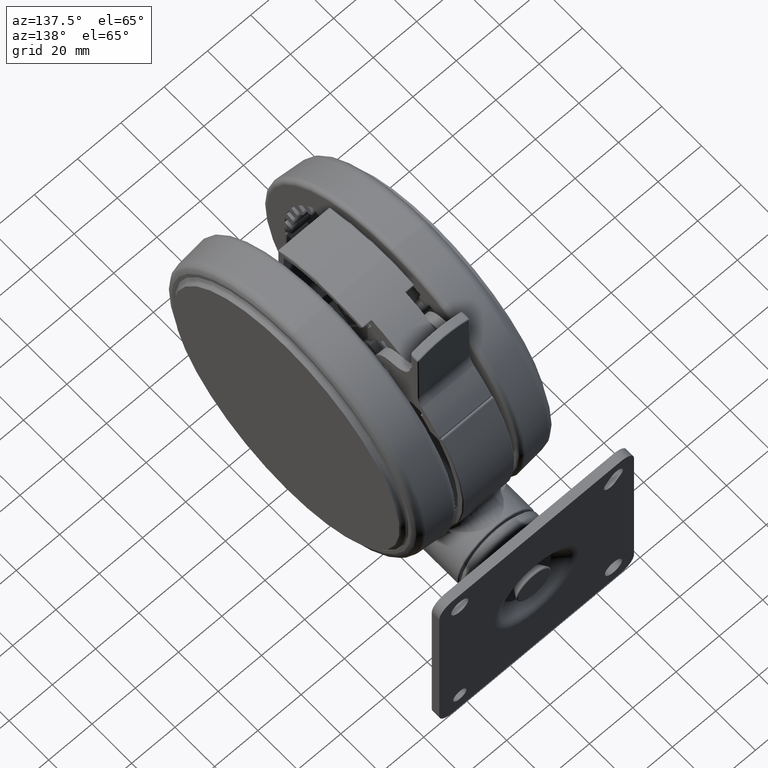
[diagram: clean part render]
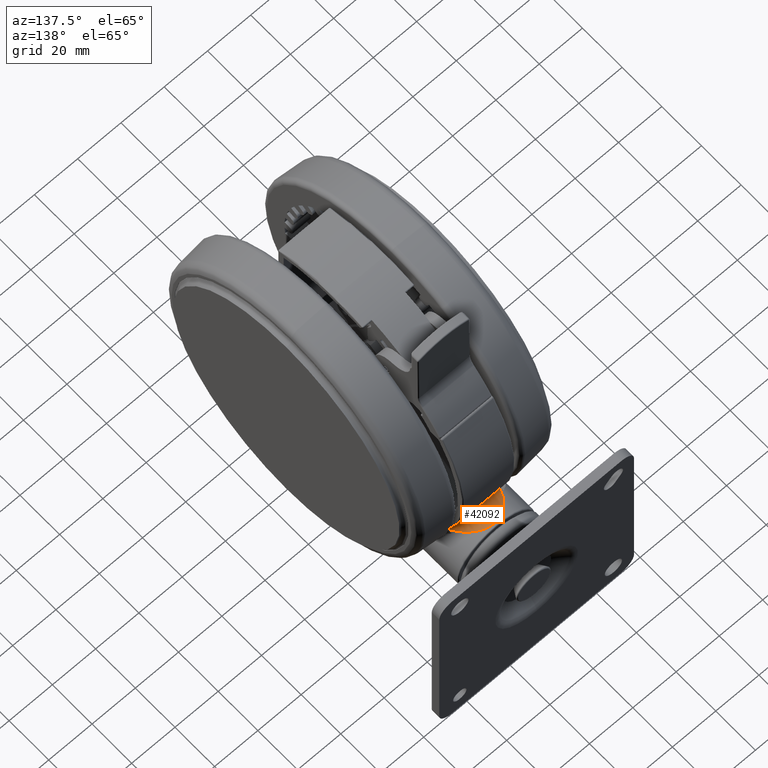
[diagram: same view with one face highlighted and labeled with its STEP entity id]
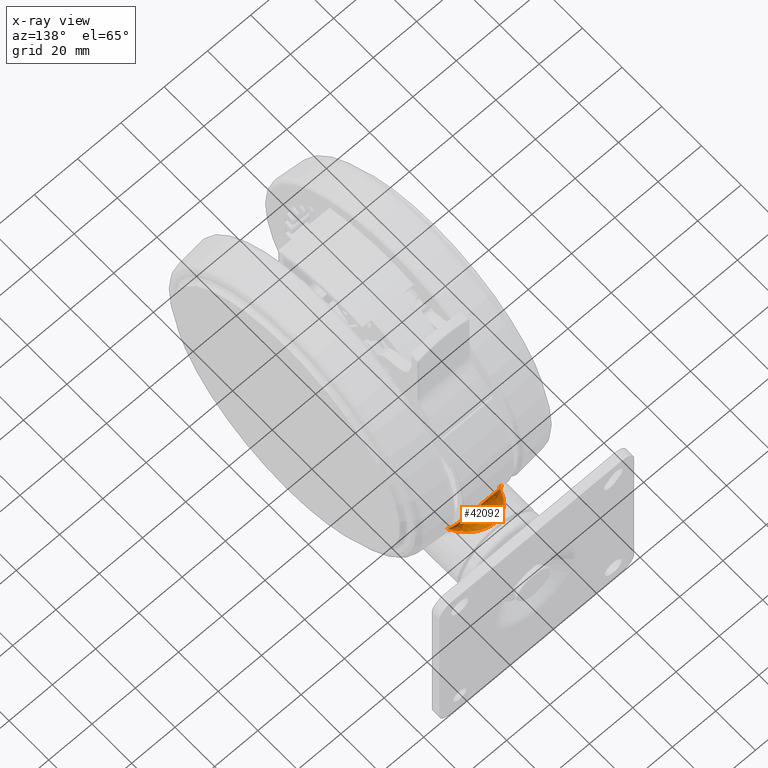
[diagram: x-ray of the same camera — body ghosted, the highlighted face saturated]
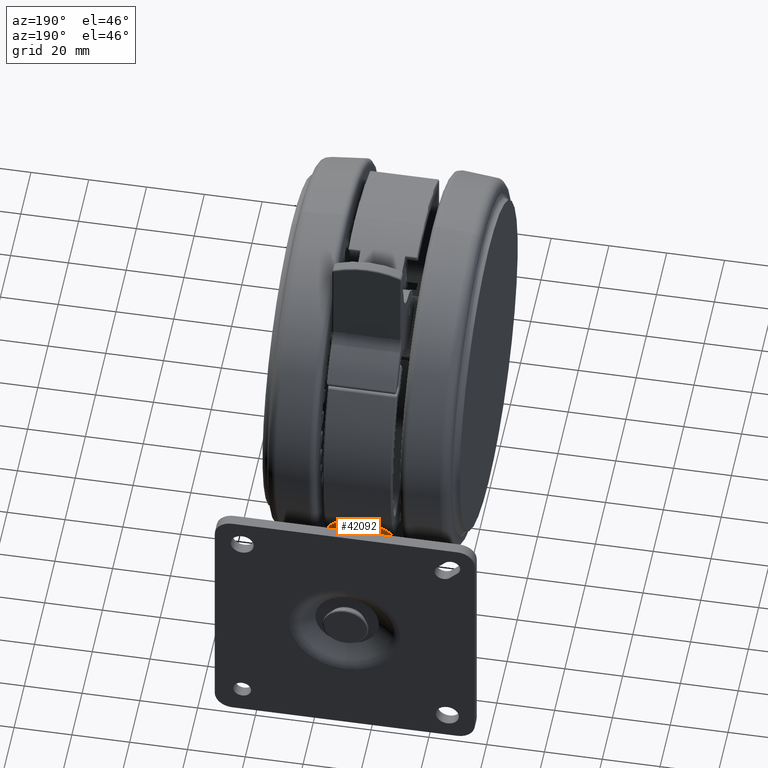
[diagram: same view with one face highlighted and labeled with its STEP entity id]
A machine part, auxiliary view. The second image highlights one B-rep face of the part: STEP entity #42092.
The next image is the same camera in x-ray: the body ghosted, the highlighted face saturated — about 0% of this face is hidden behind the body in this view.
A second angle (auxiliary view) of the same face is appended — the face is thin or edge-on in the first view.
In plain terms, the highlighted face is a freeform B-spline surface patch.
Its self-contained STEP definition (entity closure, byte-faithful):
#54 = CARTESIAN_POINT ( 'NONE',  ( 28.04856699668369700, 58.64207464974430200, -22.54200062864112700 ) ) ;
#91 = CARTESIAN_POINT ( 'NONE',  ( 21.67015956479912500, 61.28144073425520600, -41.31869377111444700 ) ) ;
#163 = CARTESIAN_POINT ( 'NONE',  ( 27.92590306755449700, 58.69533635111779500, -22.59998678528584600 ) ) ;
#333 = CARTESIAN_POINT ( 'NONE',  ( 19.32467560108554800, 62.06123351660770000, -32.35680942344248500 ) ) ;
#362 = CARTESIAN_POINT ( 'NONE',  ( 25.35360681897378400, 59.85148194636899900, -44.51417581782972400 ) ) ;
#433 = CARTESIAN_POINT ( 'NONE',  ( 29.27838663486402700, 58.06246726459874500, -22.48858511848055700 ) ) ;
#611 = CARTESIAN_POINT ( 'NONE',  ( 24.54658467532855000, 60.19142751347139600, -44.04975286024517800 ) ) ;
#719 = CARTESIAN_POINT ( 'NONE',  ( 31.52306849014732000, 56.89613251212048100, -22.14533324549611100 ) ) ;
#887 = CARTESIAN_POINT ( 'NONE',  ( 29.35598624239206700, 58.06972531539020800, -25.13851056328339000 ) ) ;
#1165 = CARTESIAN_POINT ( 'NONE',  ( 27.00023611895765200, 59.68437581392590400, -33.53456606252097300 ) ) ;
#1174 = B_SPLINE_CURVE_WITH_KNOTS ( 'NONE', 3,
 ( #68910, #5065, #37131, #81670, #43554, #5350, #49997, #11744, #56344, #18167, #62766, #24585, #69202, #30946, #75528, #37408, #81954, #43830, #5620, #50265, #12020, #56629, #18439, #63037, #24864, #69482, #31244, #75792, #37698, #82217 ),
 .UNSPECIFIED., .F., .F.,
 ( 4, 2, 2, 2, 2, 2, 2, 2, 2, 2, 2, 2, 2, 2, 4 ),
 ( -6.000000000594909100E-008, 0.0002769874312782856800, 0.0003462492890978491500, 0.0003808802180076152700, 0.0004155111469173813400, 0.0004241688791448154800, 0.0004328266113722496300, 0.0004501420758271282100, 0.0004847730047368786700, 0.0005540348625563733500, 0.0008310822938343904400, 0.001108129725112407600, 0.002216319450224488300, 0.003324509175336568800, 0.004432698900448650200 ),
 .UNSPECIFIED. ) ;
#1455 = CARTESIAN_POINT ( 'NONE',  ( 29.07747657931470500, 58.23523519274650100, -42.56144434127779900 ) ) ;
#1719 = CARTESIAN_POINT ( 'NONE',  ( 29.55780505888880000, 62.26540552550330400, -24.83595255570321900 ) ) ;
#2008 = CARTESIAN_POINT ( 'NONE',  ( 26.99967659762764800, 67.82343334390419900, -34.73940035556560700 ) ) ;
#2297 = CARTESIAN_POINT ( 'NONE',  ( 29.81333750569545100, 61.63642363757259800, -43.77433289821250600 ) ) ;
#3451 = CARTESIAN_POINT ( 'NONE',  ( 30.58251653568941500, 59.69282717029901200, -44.87856006597162000 ) ) ;
#3561 = ORIENTED_EDGE ( 'NONE', *, *, #6501, .F. ) ;
#3723 = CARTESIAN_POINT ( 'NONE',  ( 28.69495899091717600, 64.19678313742727500, -41.73013351485461400 ) ) ;
#3993 = VERTEX_POINT ( 'NONE', #75811 ) ;
#4594 = CARTESIAN_POINT ( 'NONE',  ( 27.13532945001938800, 67.53509397162231700, -31.89133214783808900 ) ) ;
#4882 = CARTESIAN_POINT ( 'NONE',  ( 29.31972042937714200, 62.81321208133081100, -25.25708756672131400 ) ) ;
#5065 = CARTESIAN_POINT ( 'NONE',  ( 31.45371904588189300, 57.19405394919948500, -45.95325033781666900 ) ) ;
#5155 = CARTESIAN_POINT ( 'NONE',  ( 31.19628043411741900, 58.00278629100984800, -22.54204867426955900 ) ) ;
#5223 =( BOUNDED_SURFACE ( )  B_SPLINE_SURFACE ( 2, 3, ( 
 ( #31817, #25422, #37998, #38271, #54, #44687, #6484, #51111, #12870, #57482, #19296, #63886, #25689, #70337, #32080, #76655, #38534, #333, #44962, #6751, #51391, #13152, #57756, #19559, #64153, #25951, #70590, #32345, #76924, #38812, #611, #45244, #7017, #51650, #13423, #58019, #19827, #64429 ),
 ( #26229, #70857, #32617, #77209, #39083, #887, #45514, #7291, #51921, #13699, #58288, #20097, #64709, #26500, #71113, #32900, #77472, #39360, #1165, #45792, #7569, #52189, #13964, #58559, #20374, #64972, #26773, #71379, #33174, #77750, #39632, #1455, #46068, #7846, #52467, #14240, #58848, #20650 ),
 ( #65252, #27033, #71653, #33451, #78028, #39926, #1719, #46354, #8118, #52748, #14511, #59134, #20917, #65527, #27298, #71926, #33740, #78302, #40202, #2008, #46622, #8395, #53026, #14803, #59418, #21210, #65805, #27574, #72203, #34013, #78589, #40487, #2297, #46907, #8664, #53292, #15072, #59708 ) ),
 .UNSPECIFIED., .F., .F., .F. ) 
 B_SPLINE_SURFACE_WITH_KNOTS ( ( 3, 3 ),
 ( 4, 2, 2, 2, 2, 2, 2, 2, 2, 2, 2, 2, 2, 2, 2, 2, 2, 2, 4 ),
 ( 0.0000000000000000000, 1.000000000000000000 ),
 ( 5.204170427930419700E-018, 0.001667139977258240000, 0.003334279954516470100, 0.005001419931774699900, 0.006668559909032929800, 0.008335699886291170900, 0.01000283986354940000, 0.01083640985217850000, 0.01166997984080762000, 0.01333711981806586100, 0.01500425979532410100, 0.01667139977258235200, 0.01750496976121145000, 0.01833853974984054800, 0.02000567972709880000, 0.02167281970435699900, 0.02333995968161525100, 0.02500709965887349900, 0.02667423963613169800 ),
 .UNSPECIFIED. ) 
 GEOMETRIC_REPRESENTATION_ITEM ( )  RATIONAL_B_SPLINE_SURFACE ( (
 ( 1.000000000000000000, 1.000000000000000000, 1.000000000000000000, 1.000000000000000000, 1.000000000000000000, 1.000000000000000000, 1.000000000000000000, 1.000000000000000000, 1.000000000000000000, 1.000000000000000000, 1.000000000000000000, 1.000000000000000000, 1.000000000000000000, 1.000000000000000000, 1.000000000000000000, 1.000000000000000000, 1.000000000000000000, 1.000000000000000000, 1.000000000000000000, 1.000000000000000000, 1.000000000000000000, 1.000000000000000000, 1.000000000000000000, 1.000000000000000000, 1.000000000000000000, 1.000000000000000000, 1.000000000000000000, 1.000000000000000000, 1.000000000000000000, 1.000000000000000000, 1.000000000000000000, 1.000000000000000000, 1.000000000000000000, 1.000000000000000000, 1.000000000000000000, 1.000000000000000000, 1.000000000000000000, 1.000000000000000000),
 ( 0.5647258037007070200, 0.5655213132370029400, 0.5663961334035440000, 0.5683943253827109500, 0.5695198488730579500, 0.5720558501717690800, 0.5734669485592089900, 0.5765124468072179200, 0.5781475654898049500, 0.5814891669686500500, 0.5831882247234410100, 0.5863946730206040000, 0.5879006976314270500, 0.5898266888057840400, 0.5904132971751010500, 0.5914474913352560900, 0.5918951216355329300, 0.5929913961683669400, 0.5933905047672920500, 0.5933911489361780600, 0.5929928103426670400, 0.5915332551926340000, 0.5904725584566089500, 0.5885440730934089500, 0.5878456986427800200, 0.5863691916050219900, 0.5855910221176889900, 0.5831839304223470600, 0.5814835273327909600, 0.5781309389228360700, 0.5764800648591369400, 0.5734174611103860500, 0.5720131733970780200, 0.5694909597531649900, 0.5683740286654650500, 0.5663900183348520300, 0.5655207354603170000, 0.5647258037007070200),
 ( 1.000000000000000000, 1.000000000000000000, 1.000000000000000000, 1.000000000000000000, 1.000000000000000000, 1.000000000000000000, 1.000000000000000000, 1.000000000000000000, 1.000000000000000000, 1.000000000000000000, 1.000000000000000000, 1.000000000000000000, 1.000000000000000000, 1.000000000000000000, 1.000000000000000000, 1.000000000000000000, 1.000000000000000000, 1.000000000000000000, 1.000000000000000000, 1.000000000000000000, 1.000000000000000000, 1.000000000000000000, 1.000000000000000000, 1.000000000000000000, 1.000000000000000000, 1.000000000000000000, 1.000000000000000000, 1.000000000000000000, 1.000000000000000000, 1.000000000000000000, 1.000000000000000000, 1.000000000000000000, 1.000000000000000000, 1.000000000000000000, 1.000000000000000000, 1.000000000000000000, 1.000000000000000000, 1.000000000000000000) ) ) 
 REPRESENTATION_ITEM ( '' )  SURFACE ( )  );
#5350 = CARTESIAN_POINT ( 'NONE',  ( 31.52044421260573200, 56.95089837210672800, -46.03606789044940200 ) ) ;
#5397 = CARTESIAN_POINT ( 'NONE',  ( 27.92590306755449700, 58.69533635111779500, -22.59998678528584600 ) ) ;
#5620 = CARTESIAN_POINT ( 'NONE',  ( 31.44581940852823700, 56.95140354814091000, -46.02358536667519200 ) ) ;
#5680 = CARTESIAN_POINT ( 'NONE',  ( 24.13795755566093200, 60.35253772253094000, -24.44338225758372500 ) ) ;
#5947 = CARTESIAN_POINT ( 'NONE',  ( 20.37157209290337400, 61.72523377728598600, -29.00752762653992900 ) ) ;
#6231 = CARTESIAN_POINT ( 'NONE',  ( 19.54512131529279600, 61.99184361767516500, -36.80211477293095600 ) ) ;
#6484 = CARTESIAN_POINT ( 'NONE',  ( 25.92156188280764800, 59.61221899404710500, -23.33790333951210600 ) ) ;
#6501 = EDGE_CURVE ( 'NONE', #82668, #3993, #14462, .T. ) ;
#6511 = CARTESIAN_POINT ( 'NONE',  ( 22.27253549177076800, 61.06650419923458600, -42.07451242591226800 ) ) ;
#6751 = CARTESIAN_POINT ( 'NONE',  ( 19.22495734915050000, 62.09187559654269300, -34.95253380560219400 ) ) ;
#6789 = CARTESIAN_POINT ( 'NONE',  ( 26.30316968427618500, 59.44255489925022600, -45.00662855525664000 ) ) ;
#6853 = CARTESIAN_POINT ( 'NONE',  ( 30.61979484622550300, 57.41276550464460400, -22.34576774793130100 ) ) ;
#7017 = CARTESIAN_POINT ( 'NONE',  ( 26.61330569935665100, 59.30726747500840200, -45.15510334813888700 ) ) ;
#7127 = CARTESIAN_POINT ( 'NONE',  ( 31.53057118985090700, 56.89248505885615300, -22.14255972799712400 ) ) ;
#7291 = CARTESIAN_POINT ( 'NONE',  ( 28.60301970038610600, 58.53025780087431000, -26.59560844218670200 ) ) ;
#7569 = CARTESIAN_POINT ( 'NONE',  ( 27.02480509660773200, 59.66330241640814300, -35.20670666757688800 ) ) ;
#7846 = CARTESIAN_POINT ( 'NONE',  ( 29.92510175715565500, 57.73865477359170500, -43.97768108397927700 ) ) ;
#8118 = CARTESIAN_POINT ( 'NONE',  ( 28.78217675208064800, 64.02111628831620700, -26.26961754746017500 ) ) ;
#8395 = CARTESIAN_POINT ( 'NONE',  ( 27.17226583903770300, 67.44888844335730500, -36.66640549148966200 ) ) ;
#8664 = CARTESIAN_POINT ( 'NONE',  ( 30.61067069014275100, 59.62766749688760400, -44.92192518474962500 ) ) ;
#9851 = CARTESIAN_POINT ( 'NONE',  ( 30.27179689030181100, 60.49523927873468000, -44.44850423538401400 ) ) ;
#10126 = CARTESIAN_POINT ( 'NONE',  ( 28.24001786564871000, 65.19293938351768200, -40.69061770637229400 ) ) ;
#11026 = CARTESIAN_POINT ( 'NONE',  ( 27.24451530478051400, 67.30619891527301500, -31.11424504980669400 ) ) ;
#11289 = CARTESIAN_POINT ( 'NONE',  ( 29.70007213175555400, 61.92219475337594000, -24.61455989430682900 ) ) ;
#11744 = CARTESIAN_POINT ( 'NONE',  ( 31.52945603639048500, 56.91967537076817500, -46.04806017941064100 ) ) ;
#11806 = CARTESIAN_POINT ( 'NONE',  ( 27.62642517994137100, 58.83713431076597500, -22.68826808428833200 ) ) ;
#12020 = CARTESIAN_POINT ( 'NONE',  ( 31.27420864871651700, 57.05970629056270100, -45.97265322691485800 ) ) ;
#12080 = CARTESIAN_POINT ( 'NONE',  ( 23.40862095568921600, 60.63911217040720900, -25.02255636260865000 ) ) ;
#12359 = CARTESIAN_POINT ( 'NONE',  ( 19.90790737072405400, 61.87663068302234100, -30.09609914001382700 ) ) ;
#12630 = CARTESIAN_POINT ( 'NONE',  ( 19.68975077168373400, 61.94613803237425000, -37.37453438217104900 ) ) ;
#12870 = CARTESIAN_POINT ( 'NONE',  ( 23.90633399598365100, 60.44758034512310000, -24.58926750334611800 ) ) ;
#12901 = CARTESIAN_POINT ( 'NONE',  ( 23.31383103802730600, 60.67521521096313100, -43.07854949590887400 ) ) ;
#13152 = CARTESIAN_POINT ( 'NONE',  ( 19.69937146963100000, 61.94331010659080100, -37.49325383016314800 ) ) ;
#13187 = CARTESIAN_POINT ( 'NONE',  ( 27.21710659369537700, 59.02741044994478900, -45.36349939107010000 ) ) ;
#13249 = CARTESIAN_POINT ( 'NONE',  ( 31.11031044188108300, 57.15236139024619900, -22.26269152473027900 ) ) ;
#13423 = CARTESIAN_POINT ( 'NONE',  ( 28.76347434287255200, 58.29497095319050000, -45.82328586648098700 ) ) ;
#13525 = CARTESIAN_POINT ( 'NONE',  ( 31.53460133128405800, 56.90764404841674200, -22.14683346306231100 ) ) ;
#13699 = CARTESIAN_POINT ( 'NONE',  ( 27.99178168792100900, 58.93483555877440200, -28.12039462866916800 ) ) ;
#13964 = CARTESIAN_POINT ( 'NONE',  ( 27.19946060763662400, 59.52083255100706100, -36.86387200835051900 ) ) ;
#14240 = CARTESIAN_POINT ( 'NONE',  ( 30.88878454401773900, 57.19671797475412200, -45.29268016542361200 ) ) ;
#14462 = B_SPLINE_CURVE_WITH_KNOTS ( 'NONE', 3,
 ( #66727, #73341, #41679, #3451, #48088, #9851, #54446, #16258, #60868, #22659, #67283, #29020, #73621, #35481, #80048, #41947, #3723, #48361, #10126, #54726, #16523, #61135, #22933, #67547, #29305, #73894, #35748, #80301, #42219 ),
 .UNSPECIFIED., .F., .F.,
 ( 4, 2, 2, 2, 2, 1, 2, 2, 2, 2, 2, 2, 2, 2, 4 ),
 ( 0.01307860757773913900, 0.07390641945431723800, 0.1043203253926063700, 0.1195272783617509200, 0.1271307548463232500, 0.1347342313308955700, 0.1651481372691866200, 0.1955620432074776600, 0.2259759491457687100, 0.2563898550840597600, 0.3172176669606410800, 0.3476315728989313700, 0.3628385258680759700, 0.3780454788372206200, 0.4997011025903751500 ),
 .UNSPECIFIED. ) ;
#14511 = CARTESIAN_POINT ( 'NONE',  ( 28.09902508243279900, 65.50315243540769900, -27.87709333704909700 ) ) ;
#14803 = CARTESIAN_POINT ( 'NONE',  ( 27.47822675875420000, 66.80430924108270600, -38.23387646173016900 ) ) ;
#15072 = CARTESIAN_POINT ( 'NONE',  ( 31.35835011565145400, 57.52051041470670600, -45.84817176667233000 ) ) ;
#16258 = CARTESIAN_POINT ( 'NONE',  ( 30.11619238796525600, 60.88573860173628600, -44.22300870400290100 ) ) ;
#16523 = CARTESIAN_POINT ( 'NONE',  ( 27.76312691928668000, 66.20652477769560600, -39.29405858378920900 ) ) ;
#17423 = CARTESIAN_POINT ( 'NONE',  ( 27.42779434949851900, 66.92248144829613900, -30.19591483057911700 ) ) ;
#17696 = CARTESIAN_POINT ( 'NONE',  ( 29.99329104215049900, 61.20788244075375700, -24.16006867614644800 ) ) ;
#18167 = CARTESIAN_POINT ( 'NONE',  ( 31.53404641992640800, 56.89578551045166700, -46.05704411765148600 ) ) ;
#18234 = CARTESIAN_POINT ( 'NONE',  ( 27.39617166329022500, 58.94446628159057900, -22.76371515054742600 ) ) ;
#18344 = VERTEX_POINT ( 'NONE', #55660 ) ;
#18439 = CARTESIAN_POINT ( 'NONE',  ( 31.03431647934001700, 57.19330640967580600, -45.92317138293000100 ) ) ;
#18503 = CARTESIAN_POINT ( 'NONE',  ( 22.25067191259084300, 61.07446460647479100, -26.13959871664137000 ) ) ;
#18742 = CARTESIAN_POINT ( 'NONE',  ( 31.43219784115480000, 57.28045721444460300, -45.92856248409525200 ) ) ;
#18786 = CARTESIAN_POINT ( 'NONE',  ( 19.53446099107078700, 61.99526671427586400, -31.40211027222164500 ) ) ;
#19055 = CARTESIAN_POINT ( 'NONE',  ( 20.17088575764760300, 61.79124011712932000, -38.72578671634456500 ) ) ;
#19133 = CARTESIAN_POINT ( 'NONE',  ( 28.60024387827377600, 58.37445868326679500, -22.54542809405540600 ) ) ;
#19296 = CARTESIAN_POINT ( 'NONE',  ( 22.13230254501455000, 61.11824206530830100, -26.25733972223187600 ) ) ;
#19328 = CARTESIAN_POINT ( 'NONE',  ( 23.67213790501916600, 60.53632407365591200, -43.37910290245623900 ) ) ;
#19559 = CARTESIAN_POINT ( 'NONE',  ( 20.51447643478405400, 61.67813037906010000, -39.47599626259969300 ) ) ;
#19589 = CARTESIAN_POINT ( 'NONE',  ( 27.42267506145585200, 58.93218258227798100, -45.43470148881331000 ) ) ;
#19660 = CARTESIAN_POINT ( 'NONE',  ( 31.34985742047772600, 57.01552274683228900, -22.20864808847526800 ) ) ;
#19827 = CARTESIAN_POINT ( 'NONE',  ( 30.89669569522654800, 57.19276047151920000, -46.09815369055281300 ) ) ;
#19921 = CARTESIAN_POINT ( 'NONE',  ( 31.52401008762953400, 56.93889926856555000, -22.15932818830466600 ) ) ;
#20097 = CARTESIAN_POINT ( 'NONE',  ( 27.52817486493948700, 59.26864450968823700, -29.68470853590854500 ) ) ;
#20374 = CARTESIAN_POINT ( 'NONE',  ( 27.40544459973334300, 59.36131503699255800, -37.95644483310758900 ) ) ;
#20650 = CARTESIAN_POINT ( 'NONE',  ( 31.58359213500123300, 56.81088546968690200, -46.10000000000005800 ) ) ;
#20917 = CARTESIAN_POINT ( 'NONE',  ( 27.55333290124155000, 66.65922100380029700, -29.62645166784309200 ) ) ;
#21210 = CARTESIAN_POINT ( 'NONE',  ( 27.71888112723694800, 66.30018600261310300, -39.14586395928406400 ) ) ;
#22213 = EDGE_CURVE ( 'NONE', #3993, #18344, #68015, .T. ) ;
#22659 = CARTESIAN_POINT ( 'NONE',  ( 30.02072685747827000, 61.12200835616035700, -44.08121895106248900 ) ) ;
#22933 = CARTESIAN_POINT ( 'NONE',  ( 27.56352081567373700, 66.62568679229104900, -38.57121978421365300 ) ) ;
#23556 = CARTESIAN_POINT ( 'NONE',  ( 27.00000000232621400, 67.82329571296227800, -34.09999999964988100 ) ) ;
#23833 = CARTESIAN_POINT ( 'NONE',  ( 27.53010713784997800, 66.70778380839733800, -29.76120331008695200 ) ) ;
#24107 = CARTESIAN_POINT ( 'NONE',  ( 30.07544309393808400, 61.00385755500816700, -24.03727319381285500 ) ) ;
#24585 = CARTESIAN_POINT ( 'NONE',  ( 31.52702510317321900, 56.89361499310098200, -46.05630478327834300 ) ) ;
#24648 = CARTESIAN_POINT ( 'NONE',  ( 27.34814487594782800, 58.96676503255361000, -22.77986088566700600 ) ) ;
#24864 = CARTESIAN_POINT ( 'NONE',  ( 30.29631412792090800, 57.57090631435701800, -45.81754956179359800 ) ) ;
#24923 = CARTESIAN_POINT ( 'NONE',  ( 21.64952585980088200, 61.28873263384547000, -26.89637461909766400 ) ) ;
#25196 = CARTESIAN_POINT ( 'NONE',  ( 19.28304060778433600, 62.07398556647676500, -32.75484630788786700 ) ) ;
#25422 = CARTESIAN_POINT ( 'NONE',  ( 30.89677763924330000, 57.19271491534839700, -22.10175125834292600 ) ) ;
#25448 = CARTESIAN_POINT ( 'NONE',  ( 20.60295828151467000, 61.64858069595445800, -39.64227792800731000 ) ) ;
#25689 = CARTESIAN_POINT ( 'NONE',  ( 20.70238994750485200, 61.61617552377000400, -28.29856950290595600 ) ) ;
#25722 = CARTESIAN_POINT ( 'NONE',  ( 24.42173400849698300, 60.23835657775620700, -43.94026350348315900 ) ) ;
#25951 = CARTESIAN_POINT ( 'NONE',  ( 21.14585279646474800, 61.46466505758910200, -40.58104261071260800 ) ) ;
#25986 = CARTESIAN_POINT ( 'NONE',  ( 27.82032428552507900, 58.74565176112127300, -45.56163820931893600 ) ) ;
#26058 = CARTESIAN_POINT ( 'NONE',  ( 31.46218175859501200, 56.94005333528130600, -22.17043312605466500 ) ) ;
#26229 = CARTESIAN_POINT ( 'NONE',  ( 31.58359213500123300, 56.81088546968690200, -22.10000000000007600 ) ) ;
#26326 = CARTESIAN_POINT ( 'NONE',  ( 31.51172991225010400, 56.98082249274452900, -22.17511674096863700 ) ) ;
#26500 = CARTESIAN_POINT ( 'NONE',  ( 27.25461895886604000, 59.47923668865434600, -31.03156326798979200 ) ) ;
#26773 = CARTESIAN_POINT ( 'NONE',  ( 27.59711526970946600, 59.21759488926223000, -38.76066206714875800 ) ) ;
#27033 = CARTESIAN_POINT ( 'NONE',  ( 31.35843477451469900, 57.52046430611630300, -22.35173358184122700 ) ) ;
#27298 = CARTESIAN_POINT ( 'NONE',  ( 27.29019217615704900, 67.21075627637419800, -30.86486151949601400 ) ) ;
#27574 = CARTESIAN_POINT ( 'NONE',  ( 28.09400730688095000, 65.50544313662851400, -40.30955521367830800 ) ) ;
#28122 = B_SPLINE_CURVE_WITH_KNOTS ( 'NONE', 3,
 ( #163, #19133, #433, #45080, #6853, #51491, #13249, #57843, #19660, #64250, #26058, #70689, #32441, #77027, #38908, #719, #45337, #7127, #51757, #13525, #58125, #19921, #64534, #26326, #70966, #32724, #77309, #39189 ),
 .UNSPECIFIED., .F., .F.,
 ( 4, 2, 2, 2, 2, 2, 2, 2, 2, 2, 2, 2, 2, 4 ),
 ( -5.999999999803910000E-008, 0.002245522492350282700, 0.003368313738525427400, 0.003649011550069221700, 0.003929709361613014700, 0.003999883814498965800, 0.004034971040941948700, 0.004052514654163444000, 0.004061286460774183500, 0.004070058267384922000, 0.004105145493827904100, 0.004140232720270886100, 0.004210407173156854500, 0.004491104984700714300 ),
 .UNSPECIFIED. ) ;
#29020 = CARTESIAN_POINT ( 'NONE',  ( 29.69672383438819500, 61.90609721813013500, -43.58013941253064900 ) ) ;
#29157 = EDGE_CURVE ( 'NONE', #82668, #49458, #1174, .T. ) ;
#29305 = CARTESIAN_POINT ( 'NONE',  ( 27.45637483020248100, 66.85016454061285200, -38.13040112691881900 ) ) ;
#29933 = CARTESIAN_POINT ( 'NONE',  ( 27.00201533165522200, 67.81909666149800800, -33.78829076255852500 ) ) ;
#30210 = CARTESIAN_POINT ( 'NONE',  ( 27.76477530957808800, 66.21361483177416600, -28.90054944784214900 ) ) ;
#30485 = CARTESIAN_POINT ( 'NONE',  ( 30.12258544996889100, 60.88595072839852700, -23.96771043773805200 ) ) ;
#30946 = CARTESIAN_POINT ( 'NONE',  ( 31.51769754075592900, 56.89954586429691100, -46.05242432687200000 ) ) ;
#31009 = CARTESIAN_POINT ( 'NONE',  ( 26.89241669005522400, 59.17712756015789200, -22.93883237918613500 ) ) ;
#31244 = CARTESIAN_POINT ( 'NONE',  ( 29.29508945463068800, 58.05014629201497900, -45.71561518309143000 ) ) ;
#31292 = CARTESIAN_POINT ( 'NONE',  ( 21.16972210647392700, 61.45657141387963700, -27.56596694341793000 ) ) ;
#31569 = CARTESIAN_POINT ( 'NONE',  ( 19.22636675363504800, 62.09143920503182600, -34.78746132980300100 ) ) ;
#31817 = CARTESIAN_POINT ( 'NONE',  ( 31.58359213500125400, 56.81088546968690200, -22.10000000000006900 ) ) ;
#31841 = CARTESIAN_POINT ( 'NONE',  ( 21.10159326407777400, 61.47976129959460000, -40.50638821008343600 ) ) ;
#32080 = CARTESIAN_POINT ( 'NONE',  ( 20.00573902027575100, 61.84490005385639900, -29.85012463052707300 ) ) ;
#32113 = CARTESIAN_POINT ( 'NONE',  ( 24.94913981047005800, 60.02134493640235000, -44.27811818790105000 ) ) ;
#32345 = CARTESIAN_POINT ( 'NONE',  ( 22.12641051849064800, 61.12037978948299600, -41.92588773839015900 ) ) ;
#32441 = CARTESIAN_POINT ( 'NONE',  ( 31.49824854489219200, 56.91378484136083000, -22.15594047201929600 ) ) ;
#32617 = CARTESIAN_POINT ( 'NONE',  ( 30.88968512757510600, 57.19622361670062100, -22.90629961748919600 ) ) ;
#32724 = CARTESIAN_POINT ( 'NONE',  ( 31.47589371153927800, 57.10779594841034900, -22.21995186116318500 ) ) ;
#32900 = CARTESIAN_POINT ( 'NONE',  ( 27.13448803288718000, 59.57458440538791700, -31.85725148658658800 ) ) ;
#33174 = CARTESIAN_POINT ( 'NONE',  ( 27.98780977991378200, 58.93692825212789200, -40.06776963965891300 ) ) ;
#33451 = CARTESIAN_POINT ( 'NONE',  ( 30.61452745660615100, 59.62559730028689800, -23.27304230140192900 ) ) ;
#33740 = CARTESIAN_POINT ( 'NONE',  ( 27.14176064071234900, 67.52143061359400600, -31.82202607197505300 ) ) ;
#34013 = CARTESIAN_POINT ( 'NONE',  ( 28.77336392755844900, 64.02533187354509900, -41.91187857922582100 ) ) ;
#35481 = CARTESIAN_POINT ( 'NONE',  ( 29.30792035097637100, 62.81362024547144800, -42.92208083538607600 ) ) ;
#35748 = CARTESIAN_POINT ( 'NONE',  ( 27.12583043080887500, 67.54388024938846500, -36.57906944889984400 ) ) ;
#36380 = CARTESIAN_POINT ( 'NONE',  ( 27.02863694349037300, 67.76147168029452000, -33.00231471585350100 ) ) ;
#36649 = CARTESIAN_POINT ( 'NONE',  ( 28.24084609274394000, 65.19993477132256000, -27.50687675379294100 ) ) ;
#36940 = CARTESIAN_POINT ( 'NONE',  ( 30.40064838187086200, 60.18108848950743100, -23.56724930814147700 ) ) ;
#37131 = CARTESIAN_POINT ( 'NONE',  ( 31.47569455010024300, 57.10837157458505700, -45.97981036435459900 ) ) ;
#37408 = CARTESIAN_POINT ( 'NONE',  ( 31.49992790338575300, 56.91252785539710100, -46.04474835207480500 ) ) ;
#37475 = CARTESIAN_POINT ( 'NONE',  ( 25.69817246601970600, 59.70742912799946100, -23.46208229475553600 ) ) ;
#37698 = CARTESIAN_POINT ( 'NONE',  ( 28.28721646168580900, 58.52319623386214400, -45.62720399135483300 ) ) ;
#37754 = CARTESIAN_POINT ( 'NONE',  ( 20.66972691797241500, 61.62604639292821000, -28.41821584794706700 ) ) ;
#37998 = CARTESIAN_POINT ( 'NONE',  ( 30.19162282183140200, 57.56825696359030100, -22.15121592283629000 ) ) ;
#38037 = CARTESIAN_POINT ( 'NONE',  ( 19.43650582107547100, 62.02598830639885800, -36.30163135562678200 ) ) ;
#38271 = CARTESIAN_POINT ( 'NONE',  ( 28.76753570661875200, 58.29294286455359500, -22.37130675191575000 ) ) ;
#38300 = CARTESIAN_POINT ( 'NONE',  ( 21.47414799631831200, 61.35040148085507600, -41.05276035806832600 ) ) ;
#38534 = CARTESIAN_POINT ( 'NONE',  ( 19.61009313618579600, 61.97139820403160100, -31.08452832265233900 ) ) ;
#38569 = CARTESIAN_POINT ( 'NONE',  ( 25.21985554605142000, 59.90796404605941900, -44.43807676528508200 ) ) ;
#38812 = CARTESIAN_POINT ( 'NONE',  ( 23.89621856686725100, 60.45155712245269800, -43.58823716197662900 ) ) ;
#38908 = CARTESIAN_POINT ( 'NONE',  ( 31.51612208338771400, 56.90068055733784300, -22.14824396819805900 ) ) ;
#39083 = CARTESIAN_POINT ( 'NONE',  ( 29.93041734676025100, 57.73585364186518400, -24.21443024956581900 ) ) ;
#39189 = CARTESIAN_POINT ( 'NONE',  ( 31.43219826552524800, 57.28085750291600000, -22.27143769147776800 ) ) ;
#39360 = CARTESIAN_POINT ( 'NONE',  ( 27.02574240849045900, 59.66279344758285000, -32.97481348149622700 ) ) ;
#39632 = CARTESIAN_POINT ( 'NONE',  ( 28.59225683084487500, 58.53586435000271100, -41.58037894574721300 ) ) ;
#39926 = CARTESIAN_POINT ( 'NONE',  ( 29.82451262923434900, 61.63067420691650300, -24.40840294769945000 ) ) ;
#40202 = CARTESIAN_POINT ( 'NONE',  ( 27.00032794277434800, 67.82316444415299400, -33.44251902155095700 ) ) ;
#40487 = CARTESIAN_POINT ( 'NONE',  ( 29.54250856171339700, 62.27311969321839800, -43.33850019583857000 ) ) ;
#41679 = CARTESIAN_POINT ( 'NONE',  ( 30.95254292515515400, 58.69567110028427900, -45.36204670067109400 ) ) ;
#41947 = CARTESIAN_POINT ( 'NONE',  ( 28.93181367911125800, 63.66870288663505300, -42.21706154464681800 ) ) ;
#42092 = ADVANCED_FACE ( 'NONE', ( #65897 ), #5223, .T. ) ;
#42219 = CARTESIAN_POINT ( 'NONE',  ( 27.00000000232621400, 67.82329571296227800, -34.09999999964988100 ) ) ;
#42243 = CARTESIAN_POINT ( 'NONE',  ( 27.79232637209798500, 58.75890123488316200, -22.63798909152732700 ) ) ;
#42829 = CARTESIAN_POINT ( 'NONE',  ( 27.11691472586480600, 67.57382911055003700, -32.04546503646464100 ) ) ;
#43090 = CARTESIAN_POINT ( 'NONE',  ( 28.94463039377171400, 63.66525663065665700, -25.94535851986655600 ) ) ;
#43372 = CARTESIAN_POINT ( 'NONE',  ( 30.95374303908645100, 58.69611726397341300, -22.83653937618285900 ) ) ;
#43554 = CARTESIAN_POINT ( 'NONE',  ( 31.51130209831909200, 56.98218430583675300, -46.02434798752607000 ) ) ;
#43830 = CARTESIAN_POINT ( 'NONE',  ( 31.46415165700792500, 56.93864805557887400, -46.03027671637308100 ) ) ;
#43884 = CARTESIAN_POINT ( 'NONE',  ( 24.38946645385690500, 60.25139982984629200, -24.26384737465338800 ) ) ;
#44162 = CARTESIAN_POINT ( 'NONE',  ( 20.44288935957102300, 61.70165689065495900, -28.85910942607371200 ) ) ;
#44434 = CARTESIAN_POINT ( 'NONE',  ( 19.52615598186860500, 61.99781944255990900, -36.72101404127205600 ) ) ;
#44494 = EDGE_CURVE ( 'NONE', #61794, #49458, #51242, .T. ) ;
#44687 = CARTESIAN_POINT ( 'NONE',  ( 26.62555077580350000, 59.30172911204820000, -23.02527136428858500 ) ) ;
#44721 = CARTESIAN_POINT ( 'NONE',  ( 21.76791565473871500, 61.24679039606800800, -41.44564791617381200 ) ) ;
#44962 = CARTESIAN_POINT ( 'NONE',  ( 19.22575241847635400, 62.09162942069269800, -33.22335869721985800 ) ) ;
#45002 = CARTESIAN_POINT ( 'NONE',  ( 25.68911813592593100, 59.70913800842981800, -44.70101322627728300 ) ) ;
#45080 = CARTESIAN_POINT ( 'NONE',  ( 30.28500752905423000, 57.57685255856760900, -22.38308119018412900 ) ) ;
#45244 = CARTESIAN_POINT ( 'NONE',  ( 25.90455254088765000, 59.61960183520970000, -44.83244844785897200 ) ) ;
#45337 = CARTESIAN_POINT ( 'NONE',  ( 31.52540697989360300, 56.89462423489817400, -22.14435117520629200 ) ) ;
#45514 = CARTESIAN_POINT ( 'NONE',  ( 29.08996814728688900, 58.22873585410936000, -25.61475939994789300 ) ) ;
#45792 = CARTESIAN_POINT ( 'NONE',  ( 26.99976715038620900, 59.68463011624839300, -34.64988399648471100 ) ) ;
#46068 = CARTESIAN_POINT ( 'NONE',  ( 29.34658207648596900, 58.07463170998614300, -43.04517112517834900 ) ) ;
#46354 = CARTESIAN_POINT ( 'NONE',  ( 29.03681675847190000, 63.46056091371880800, -25.76568896387594500 ) ) ;
#46616 = CARTESIAN_POINT ( 'NONE',  ( 27.95437384687145200, 58.68178101843090400, -45.60001317750182900 ) ) ;
#46622 = CARTESIAN_POINT ( 'NONE',  ( 27.03446389449034700, 67.74565990993319500, -35.38610065792732900 ) ) ;
#46907 = CARTESIAN_POINT ( 'NONE',  ( 30.34691721183070000, 60.31392128795259600, -44.56492233819294300 ) ) ;
#48088 = CARTESIAN_POINT ( 'NONE',  ( 30.45837264881846100, 60.01807470615978000, -44.71070690295909600 ) ) ;
#48361 = CARTESIAN_POINT ( 'NONE',  ( 28.58257091675033500, 64.44457905502136400, -41.48588742266621700 ) ) ;
#49252 = CARTESIAN_POINT ( 'NONE',  ( 27.17659001136983600, 67.44849246723522600, -31.57993573143129500 ) ) ;
#49458 = VERTEX_POINT ( 'NONE', #46616 ) ;
#49530 = CARTESIAN_POINT ( 'NONE',  ( 29.44483138160192600, 62.52410021665792800, -25.03920003391647200 ) ) ;
#49817 = CARTESIAN_POINT ( 'NONE',  ( 31.43219826552524800, 57.28085750291600000, -22.27143769147776800 ) ) ;
#49997 = CARTESIAN_POINT ( 'NONE',  ( 31.52351462578379000, 56.94049643063039000, -46.04003210049131000 ) ) ;
#50265 = CARTESIAN_POINT ( 'NONE',  ( 31.35262377338743500, 57.01378885507819700, -45.99205832888490900 ) ) ;
#50320 = CARTESIAN_POINT ( 'NONE',  ( 23.64653828361601000, 60.54676731015368300, -24.82376520894524300 ) ) ;
#50603 = CARTESIAN_POINT ( 'NONE',  ( 20.16148068567649100, 61.79430745747500700, -29.46952685547477200 ) ) ;
#50881 = CARTESIAN_POINT ( 'NONE',  ( 19.58523465069505700, 61.97918219874328100, -36.96602451009528100 ) ) ;
#51111 = CARTESIAN_POINT ( 'NONE',  ( 24.56217640953624900, 60.18507716922259500, -24.11871903752540900 ) ) ;
#51152 = CARTESIAN_POINT ( 'NONE',  ( 22.71460384025984800, 60.90410585044376300, -42.54105573440799000 ) ) ;
#51242 = B_SPLINE_CURVE_WITH_KNOTS ( 'NONE', 3,
 ( #5397, #42243, #11806, #56408, #18234, #62824, #24648, #69258, #31009, #75580, #37475, #82016, #43884, #5680, #50320, #12080, #56692, #18503, #63104, #24923, #69542, #31292, #75853, #37754, #82281, #44162, #5947, #50603, #12359, #56959, #18786, #63372, #25196, #69810, #31569, #76127, #38037, #82553, #44434, #6231, #50881, #12630, #57230, #19055, #63653, #25448, #70097, #31841, #76414, #38300, #91, #44721, #6511, #51152, #12901, #57514, #19328, #63920, #25722, #70360, #32113, #76683, #38569, #362, #45002, #6789, #51421, #13187, #57783, #19589, #64183, #25986, #70626 ),
 .UNSPECIFIED., .F., .F.,
 ( 4, 1, 1, 2, 2, 1, 2, 2, 2, 2, 2, 2, 1, 2, 2, 2, 1, 2, 2, 2, 2, 2, 2, 1, 1, 2, 2, 2, 2, 2, 2, 2, 1, 2, 2, 2, 1, 1, 2, 2, 1, 4 ),
 ( 0.1067419510894592100, 0.1190486621802158000, 0.1221253399529049600, 0.1236636788392495700, 0.1252020177255941900, 0.1313553732709725800, 0.1559687954524863800, 0.2051956398155139700, 0.2298090619970276100, 0.2544224841785412400, 0.3036493285415684500, 0.3159560396323252100, 0.3282627507230819200, 0.3528761729045951600, 0.3651828839953517600, 0.3774895950861083000, 0.4021030172676214900, 0.4267164394491346800, 0.4513298616306480900, 0.5005567059936749700, 0.5497835503567017900, 0.5620902614474584400, 0.5682436169928367600, 0.5743969725382150900, 0.5990103947197285000, 0.6236238169012419100, 0.6482372390827554300, 0.6728506612642688500, 0.6851573723550256100, 0.6974640834457823700, 0.7466909278088093000, 0.7589976388995658400, 0.7713043499903226000, 0.7959177721718361200, 0.8082244832625930000, 0.8143778388079716500, 0.8205311943533503100, 0.8451446165348656100, 0.8697580387163808000, 0.8759113942617594600, 0.8820647498071380000, 0.8943714608978949900 ),
 .UNSPECIFIED. ) ;
#51391 = CARTESIAN_POINT ( 'NONE',  ( 19.32308470046639900, 62.06172170443220200, -35.81457740243978800 ) ) ;
#51421 = CARTESIAN_POINT ( 'NONE',  ( 26.86298689317154500, 59.19017779428045100, -45.23463577216099200 ) ) ;
#51491 = CARTESIAN_POINT ( 'NONE',  ( 31.02902526023653400, 57.19626828357366600, -22.27755952902918000 ) ) ;
#51650 = CARTESIAN_POINT ( 'NONE',  ( 28.04218278834235200, 58.64517030467890600, -45.64911281560205200 ) ) ;
#51757 = CARTESIAN_POINT ( 'NONE',  ( 31.53376723770534400, 56.89381013920256400, -22.14233076713333400 ) ) ;
#51921 = CARTESIAN_POINT ( 'NONE',  ( 28.38163065454567400, 58.67296370866665000, -27.10125296800147900 ) ) ;
#52189 = CARTESIAN_POINT ( 'NONE',  ( 27.12456858463812300, 59.58146140304678800, -36.31313104047524100 ) ) ;
#52467 = CARTESIAN_POINT ( 'NONE',  ( 30.23529320846996900, 57.56286153218964300, -44.42783727009469200 ) ) ;
#52748 = CARTESIAN_POINT ( 'NONE',  ( 28.31413501433615200, 65.04195720301820000, -27.32396945594294000 ) ) ;
#53026 = CARTESIAN_POINT ( 'NONE',  ( 27.27528077155875200, 67.22983686530649500, -37.30003386651768000 ) ) ;
#53292 = CARTESIAN_POINT ( 'NONE',  ( 31.11641256930920100, 58.23095354850170200, -45.56354494675184700 ) ) ;
#53973 = ORIENTED_EDGE ( 'NONE', *, *, #22213, .F. ) ;
#54446 = CARTESIAN_POINT ( 'NONE',  ( 30.20954573881164900, 60.65250968105694100, -44.35936644053713000 ) ) ;
#54726 = CARTESIAN_POINT ( 'NONE',  ( 28.03396110006650600, 65.63342581418625300, -40.14199277852586800 ) ) ;
#55618 = CARTESIAN_POINT ( 'NONE',  ( 27.33033885624493600, 67.12673147716617400, -30.65322690051891600 ) ) ;
#55660 = CARTESIAN_POINT ( 'NONE',  ( 31.43219826552524800, 57.28085750291600000, -22.27143769147776800 ) ) ;
#55901 = CARTESIAN_POINT ( 'NONE',  ( 29.82963905111824200, 61.61062240275494200, -24.40892554062914900 ) ) ;
#56344 = CARTESIAN_POINT ( 'NONE',  ( 31.53329815651673200, 56.90947700546660600, -46.05225917396779100 ) ) ;
#56408 = CARTESIAN_POINT ( 'NONE',  ( 27.44541606508240500, 58.92157019464794100, -22.74730794547513200 ) ) ;
#56629 = CARTESIAN_POINT ( 'NONE',  ( 31.11515132542974300, 57.14961233858480900, -45.93807750063822200 ) ) ;
#56692 = CARTESIAN_POINT ( 'NONE',  ( 22.69148590163013400, 60.91271055391931800, -25.67161477966031700 ) ) ;
#56959 = CARTESIAN_POINT ( 'NONE',  ( 19.70776321033785900, 61.94039336677740000, -30.74381804980476600 ) ) ;
#57230 = CARTESIAN_POINT ( 'NONE',  ( 19.91594499075797800, 61.87404756975024600, -38.09847191439211400 ) ) ;
#57482 = CARTESIAN_POINT ( 'NONE',  ( 22.69232652957014600, 60.91371841697900200, -25.65701652162717000 ) ) ;
#57514 = CARTESIAN_POINT ( 'NONE',  ( 23.43163832220241400, 60.62981915594368600, -43.17996524113615900 ) ) ;
#57756 = CARTESIAN_POINT ( 'NONE',  ( 19.97752858790445200, 61.85499489384879700, -38.30988555232048000 ) ) ;
#57783 = CARTESIAN_POINT ( 'NONE',  ( 27.29120315660091100, 58.99318165434271300, -45.38961938130581300 ) ) ;
#57843 = CARTESIAN_POINT ( 'NONE',  ( 31.27053688249213800, 57.06190367887325700, -22.22813673743640100 ) ) ;
#58019 = CARTESIAN_POINT ( 'NONE',  ( 30.19070856520090000, 57.56876072174489400, -46.04777176340936500 ) ) ;
#58034 = ORIENTED_EDGE ( 'NONE', *, *, #67203, .T. ) ;
#58125 = CARTESIAN_POINT ( 'NONE',  ( 31.52995531496177200, 56.91795101302660200, -22.15124700725291300 ) ) ;
#58288 = CARTESIAN_POINT ( 'NONE',  ( 27.82156660061021800, 59.05482984075989400, -28.63639633424744300 ) ) ;
#58559 = CARTESIAN_POINT ( 'NONE',  ( 27.34911589242807000, 59.40447472434172500, -37.68356449233051100 ) ) ;
#58848 = CARTESIAN_POINT ( 'NONE',  ( 31.23183832186144600, 57.00644040333360600, -45.70672728296405300 ) ) ;
#59134 = CARTESIAN_POINT ( 'NONE',  ( 27.71862756750670100, 66.31175503621101100, -29.02834471306513800 ) ) ;
#59418 = CARTESIAN_POINT ( 'NONE',  ( 27.55402111806294800, 66.64625196228979600, -38.54248055045558600 ) ) ;
#59708 = CARTESIAN_POINT ( 'NONE',  ( 31.58359213500125400, 56.81088546968690200, -46.10000000000007200 ) ) ;
#60868 = CARTESIAN_POINT ( 'NONE',  ( 30.08527977950435400, 60.96256122219018200, -44.17742409406592000 ) ) ;
#61135 = CARTESIAN_POINT ( 'NONE',  ( 27.67922363963696600, 66.38295265178312800, -39.00725555591247200 ) ) ;
#61757 = CARTESIAN_POINT ( 'NONE',  ( 27.00000000000304500, 67.82343508862588500, -33.94649778794352800 ) ) ;
#61794 = VERTEX_POINT ( 'NONE', #79478 ) ;
#62021 = CARTESIAN_POINT ( 'NONE',  ( 27.46050549096927900, 66.85387296732930900, -30.05173547071313000 ) ) ;
#62295 = CARTESIAN_POINT ( 'NONE',  ( 30.02610628729524200, 61.12667072216726900, -24.11070645372876700 ) ) ;
#62766 = CARTESIAN_POINT ( 'NONE',  ( 31.53254851817104100, 56.89233104787297900, -46.05789376378952200 ) ) ;
#62824 = CARTESIAN_POINT ( 'NONE',  ( 27.36336916197056000, 58.95970111128236400, -22.77472115942863700 ) ) ;
#63037 = CARTESIAN_POINT ( 'NONE',  ( 30.62819185518034400, 57.40826852280439900, -45.85491294321128900 ) ) ;
#63104 = CARTESIAN_POINT ( 'NONE',  ( 21.74756569991431800, 61.25401864652220500, -26.76867654488429300 ) ) ;
#63372 = CARTESIAN_POINT ( 'NONE',  ( 19.46034929420567700, 62.01853465009203600, -31.74024620383640600 ) ) ;
#63653 = CARTESIAN_POINT ( 'NONE',  ( 20.45259772501639300, 61.69856751788859100, -39.34500890495279200 ) ) ;
#63886 = CARTESIAN_POINT ( 'NONE',  ( 21.13732615736455100, 61.46943770700099200, -27.57812462076695700 ) ) ;
#63920 = CARTESIAN_POINT ( 'NONE',  ( 24.03853599999608200, 60.39264876353387700, -43.67055891784971100 ) ) ;
#64153 = CARTESIAN_POINT ( 'NONE',  ( 20.71348674367469700, 61.61171648356330600, -39.85504554629074600 ) ) ;
#64183 = CARTESIAN_POINT ( 'NONE',  ( 27.62053252951432800, 58.83998178103006900, -45.50066272967117700 ) ) ;
#64250 = CARTESIAN_POINT ( 'NONE',  ( 31.44369861080873500, 56.95287241042996100, -22.17712979686919200 ) ) ;
#64429 = CARTESIAN_POINT ( 'NONE',  ( 31.58359213500125400, 56.81088546968690200, -46.10000000000007200 ) ) ;
#64534 = CARTESIAN_POINT ( 'NONE',  ( 31.52092241349558300, 56.94935872453460500, -22.16331897240673100 ) ) ;
#64709 = CARTESIAN_POINT ( 'NONE',  ( 27.40464201013801200, 59.36261657208842700, -30.21737321296694400 ) ) ;
#64871 = ORIENTED_EDGE ( 'NONE', *, *, #29157, .T. ) ;
#64972 = CARTESIAN_POINT ( 'NONE',  ( 27.52935551218819700, 59.26792507955170900, -38.49456091904519200 ) ) ;
#65252 = CARTESIAN_POINT ( 'NONE',  ( 31.58359213500125400, 56.81088546968690200, -22.10000000000006900 ) ) ;
#65527 = CARTESIAN_POINT ( 'NONE',  ( 27.35036578861595300, 67.08481780997860300, -30.55174421890087900 ) ) ;
#65805 = CARTESIAN_POINT ( 'NONE',  ( 27.80812979907894800, 66.11209730466320900, -39.44157188639837800 ) ) ;
#65897 = FACE_OUTER_BOUND ( 'NONE', #69123, .T. ) ;
#66727 = CARTESIAN_POINT ( 'NONE',  ( 31.43219784115480000, 57.28045721444460300, -45.92856248409525200 ) ) ;
#67203 = EDGE_CURVE ( 'NONE', #61794, #18344, #28122, .T. ) ;
#67283 = CARTESIAN_POINT ( 'NONE',  ( 29.85912165285510200, 61.51874807567423200, -43.83786283791325600 ) ) ;
#67547 = CARTESIAN_POINT ( 'NONE',  ( 27.52664514371305100, 66.70294689402312800, -38.42490316752812900 ) ) ;
#68015 = B_SPLINE_CURVE_WITH_KNOTS ( 'NONE', 3,
 ( #23556, #61757, #29933, #74517, #36380, #80926, #42829, #4594, #49252, #11026, #55618, #17423, #62021, #23833, #68454, #30210, #74796, #36649, #81214, #43090, #4882, #49530, #11289, #55901, #17696, #62295, #24107, #68727, #30485, #75061, #36940, #81485, #43372, #5155, #49817 ),
 .UNSPECIFIED., .F., .F.,
 ( 4, 2, 1, 2, 2, 1, 2, 2, 1, 2, 2, 2, 2, 2, 2, 2, 1, 1, 2, 4 ),
 ( 0.4997011025903751500, 0.5149259359329873000, 0.5301507692755994500, 0.5606004359608236500, 0.5758252693034359200, 0.5910501026460480700, 0.6214997693312724900, 0.6367246026738845300, 0.6519494360164965800, 0.6823991027017205500, 0.7432984360721679500, 0.8041977694426154500, 0.8346474361278395400, 0.8650971028130631800, 0.8727095194843692600, 0.8765157278200219600, 0.8803219361556746700, 0.8955467694982841600, 0.9259964361835029100, 0.9868957695539399800 ),
 .UNSPECIFIED. ) ;
#68454 = CARTESIAN_POINT ( 'NONE',  ( 27.63973850838714300, 66.47746977003397700, -29.32752157655685800 ) ) ;
#68727 = CARTESIAN_POINT ( 'NONE',  ( 30.09171115884843300, 60.96323916706468500, -24.01319280962523500 ) ) ;
#68910 = CARTESIAN_POINT ( 'NONE',  ( 31.43219784115480000, 57.28045721444460300, -45.92856248409525200 ) ) ;
#69123 = EDGE_LOOP ( 'NONE', ( #3561, #64871, #75748, #58034, #53973 ) ) ;
#69202 = CARTESIAN_POINT ( 'NONE',  ( 31.52469248943880900, 56.89516036757402200, -46.05530611325849600 ) ) ;
#69258 = CARTESIAN_POINT ( 'NONE',  ( 27.25667273886927300, 59.00915434209894500, -22.81098914732393400 ) ) ;
#69482 = CARTESIAN_POINT ( 'NONE',  ( 29.63007074562431200, 57.89233774329644400, -45.74700741499489700 ) ) ;
#69542 = CARTESIAN_POINT ( 'NONE',  ( 21.45418476367681700, 61.35738483624606900, -27.16199617994645600 ) ) ;
#69810 = CARTESIAN_POINT ( 'NONE',  ( 19.22436531436573000, 62.09205890737770500, -33.43434025363112000 ) ) ;
#70097 = CARTESIAN_POINT ( 'NONE',  ( 20.92787093554782300, 61.53904134677835500, -40.22387728630288000 ) ) ;
#70337 = CARTESIAN_POINT ( 'NONE',  ( 20.16547926213409900, 61.79311413949849900, -29.45305898932383900 ) ) ;
#70360 = CARTESIAN_POINT ( 'NONE',  ( 24.81591559312336100, 60.07653874074011900, -44.19546713594325400 ) ) ;
#70590 = CARTESIAN_POINT ( 'NONE',  ( 21.37942860017085100, 61.38395351996359800, -40.92920699994599700 ) ) ;
#70626 = CARTESIAN_POINT ( 'NONE',  ( 27.95437384687145200, 58.68178101843090400, -45.60001317750182900 ) ) ;
#70689 = CARTESIAN_POINT ( 'NONE',  ( 31.48931637179158800, 56.92041872092237000, -22.15965825582302500 ) ) ;
#70857 = CARTESIAN_POINT ( 'NONE',  ( 31.23192355921887800, 57.00639301624405400, -22.49317741888740900 ) ) ;
#70966 = CARTESIAN_POINT ( 'NONE',  ( 31.50565104521010800, 57.00190101306954200, -22.18275613552467700 ) ) ;
#71113 = CARTESIAN_POINT ( 'NONE',  ( 27.21053275361853000, 59.51402352589533300, -31.30515003488195400 ) ) ;
#71379 = CARTESIAN_POINT ( 'NONE',  ( 27.81784157094600500, 59.05679843491518700, -39.55184290462521800 ) ) ;
#71653 = CARTESIAN_POINT ( 'NONE',  ( 31.11732082831500200, 58.23044830617899900, -22.63544364922770700 ) ) ;
#71926 = CARTESIAN_POINT ( 'NONE',  ( 27.18593532314804800, 67.42904261136180800, -31.49951661523793000 ) ) ;
#72203 = CARTESIAN_POINT ( 'NONE',  ( 28.30881733576610100, 65.04440929035399700, -40.86266119461903700 ) ) ;
#73341 = CARTESIAN_POINT ( 'NONE',  ( 31.19597445758021700, 58.00234910369782400, -45.65760042550589800 ) ) ;
#73621 = CARTESIAN_POINT ( 'NONE',  ( 29.43772748812792600, 62.51383590742530300, -43.14870040106477900 ) ) ;
#73894 = CARTESIAN_POINT ( 'NONE',  ( 27.42352200947122400, 66.91895442888927900, -37.98496037588779500 ) ) ;
#74517 = CARTESIAN_POINT ( 'NONE',  ( 27.01018319708686000, 67.80143269593934000, -33.47461518382359500 ) ) ;
#74796 = CARTESIAN_POINT ( 'NONE',  ( 28.03460642237436000, 65.64118375539267400, -28.05645423191679600 ) ) ;
#75061 = CARTESIAN_POINT ( 'NONE',  ( 30.19978738053789900, 60.69217142143812500, -23.85454115236004200 ) ) ;
#75528 = CARTESIAN_POINT ( 'NONE',  ( 31.51327019521454200, 56.90279778210392400, -46.05048026317962200 ) ) ;
#75580 = CARTESIAN_POINT ( 'NONE',  ( 26.53638836899736500, 59.33728492795938100, -23.08332653722088100 ) ) ;
#75748 = ORIENTED_EDGE ( 'NONE', *, *, #44494, .F. ) ;
#75792 = CARTESIAN_POINT ( 'NONE',  ( 28.62468471526557700, 58.36511889564788200, -45.65571564866560500 ) ) ;
#75811 = CARTESIAN_POINT ( 'NONE',  ( 27.00000000232621400, 67.82329571296227800, -34.09999999964988100 ) ) ;
#75853 = CARTESIAN_POINT ( 'NONE',  ( 20.91104773475947800, 61.54475527762041800, -27.98655297348422600 ) ) ;
#76127 = CARTESIAN_POINT ( 'NONE',  ( 19.28682181034139700, 62.07281407466353300, -35.46171010078335700 ) ) ;
#76414 = CARTESIAN_POINT ( 'NONE',  ( 21.37891699338514000, 61.38364179587569700, -40.91772146270345400 ) ) ;
#76655 = CARTESIAN_POINT ( 'NONE',  ( 19.72810134787420500, 61.93402355431839400, -30.66521430071001900 ) ) ;
#76683 = CARTESIAN_POINT ( 'NONE',  ( 25.15169236763343400, 59.93661424670376900, -44.39846952754439300 ) ) ;
#76924 = CARTESIAN_POINT ( 'NONE',  ( 22.68610968668030000, 60.91601142235559500, -42.52630130999806800 ) ) ;
#77027 = CARTESIAN_POINT ( 'NONE',  ( 31.51166426026054500, 56.90395921069897200, -22.15019292307194800 ) ) ;
#77209 = CARTESIAN_POINT ( 'NONE',  ( 30.23881056643339300, 57.56099024423217300, -23.76724278943037700 ) ) ;
#77309 = CARTESIAN_POINT ( 'NONE',  ( 31.45397907605043000, 57.19330797630784200, -22.24645226956632600 ) ) ;
#77472 = CARTESIAN_POINT ( 'NONE',  ( 27.10242698745301100, 59.60042147972186700, -32.13672377471554900 ) ) ;
#77750 = CARTESIAN_POINT ( 'NONE',  ( 28.37484902183078400, 58.67650871430763000, -41.08207356453573300 ) ) ;
#78028 = CARTESIAN_POINT ( 'NONE',  ( 30.35290244265105000, 60.31074405743910200, -23.62693915276290500 ) ) ;
#78302 = CARTESIAN_POINT ( 'NONE',  ( 27.03576459800769900, 67.74512608529970200, -32.79242233756730900 ) ) ;
#78589 = CARTESIAN_POINT ( 'NONE',  ( 29.02308622630414800, 63.46725957536909800, -42.40795725200245400 ) ) ;
#79478 = CARTESIAN_POINT ( 'NONE',  ( 27.92590306755449700, 58.69533635111779500, -22.59998678528584600 ) ) ;
#80048 = CARTESIAN_POINT ( 'NONE',  ( 29.05458055190173600, 63.39207030824388100, -42.45548159004599100 ) ) ;
#80301 = CARTESIAN_POINT ( 'NONE',  ( 26.99999999997561400, 67.82218194047797500, -35.32657548269956700 ) ) ;
#80926 = CARTESIAN_POINT ( 'NONE',  ( 27.06614210760456300, 67.68111546272912400, -32.52515002337077700 ) ) ;
#81214 = CARTESIAN_POINT ( 'NONE',  ( 28.70160748628817200, 64.19818027021732100, -26.43834774374651500 ) ) ;
#81485 = CARTESIAN_POINT ( 'NONE',  ( 30.58570749890125700, 59.69324317277076400, -23.31719462978950500 ) ) ;
#81670 = CARTESIAN_POINT ( 'NONE',  ( 31.50526437049028100, 57.00313279052390700, -46.01676130109519400 ) ) ;
#81954 = CARTESIAN_POINT ( 'NONE',  ( 31.49106850129294300, 56.91912667314627300, -46.04103568428323000 ) ) ;
#82016 = CARTESIAN_POINT ( 'NONE',  ( 25.16104298967593400, 59.93522284192272300, -23.75721250411366700 ) ) ;
#82217 = CARTESIAN_POINT ( 'NONE',  ( 27.95437384687145200, 58.68178101843090400, -45.60001317750182900 ) ) ;
#82281 = CARTESIAN_POINT ( 'NONE',  ( 20.59217860871009600, 61.65199403560887200, -28.56394961350077800 ) ) ;
#82553 = CARTESIAN_POINT ( 'NONE',  ( 19.47014680937347500, 62.01544094387734400, -36.46947112115134400 ) ) ;
#82668 = VERTEX_POINT ( 'NONE', #18742 ) ;